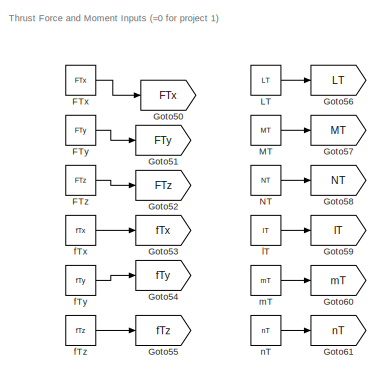
[diagram: root canvas - part 1/6, top left region]
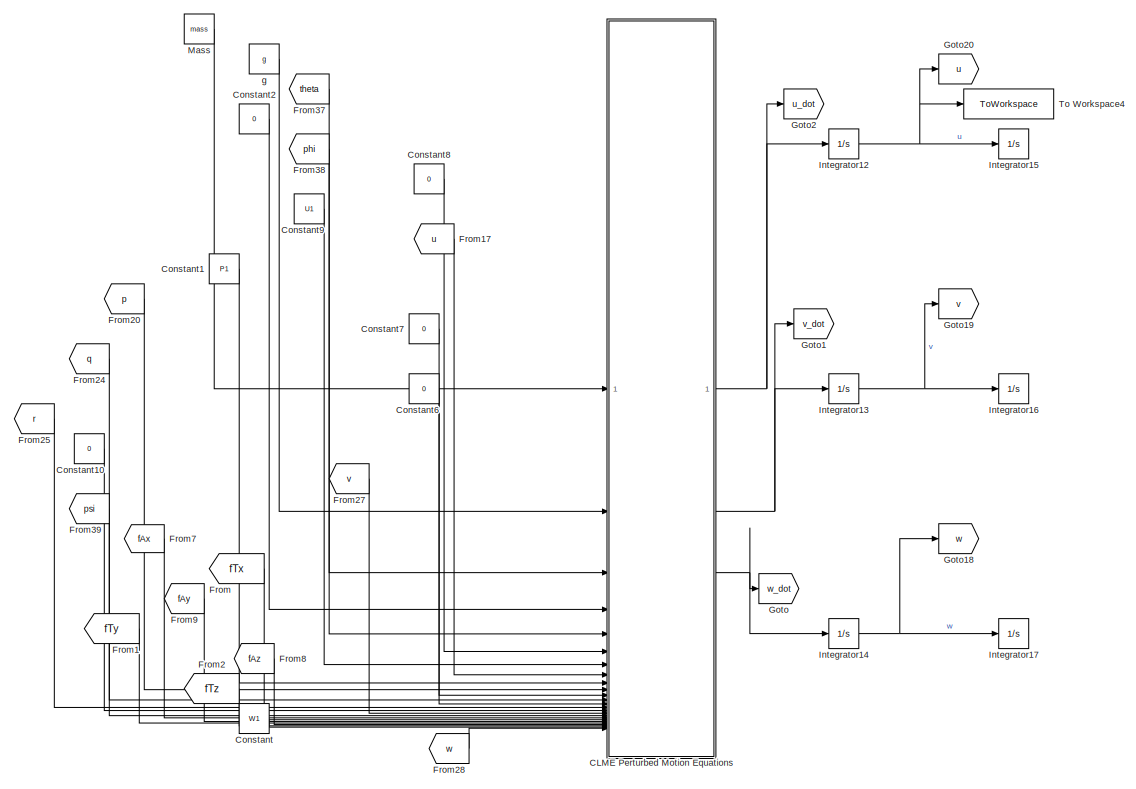
[diagram: root canvas - part 2/6, central region]
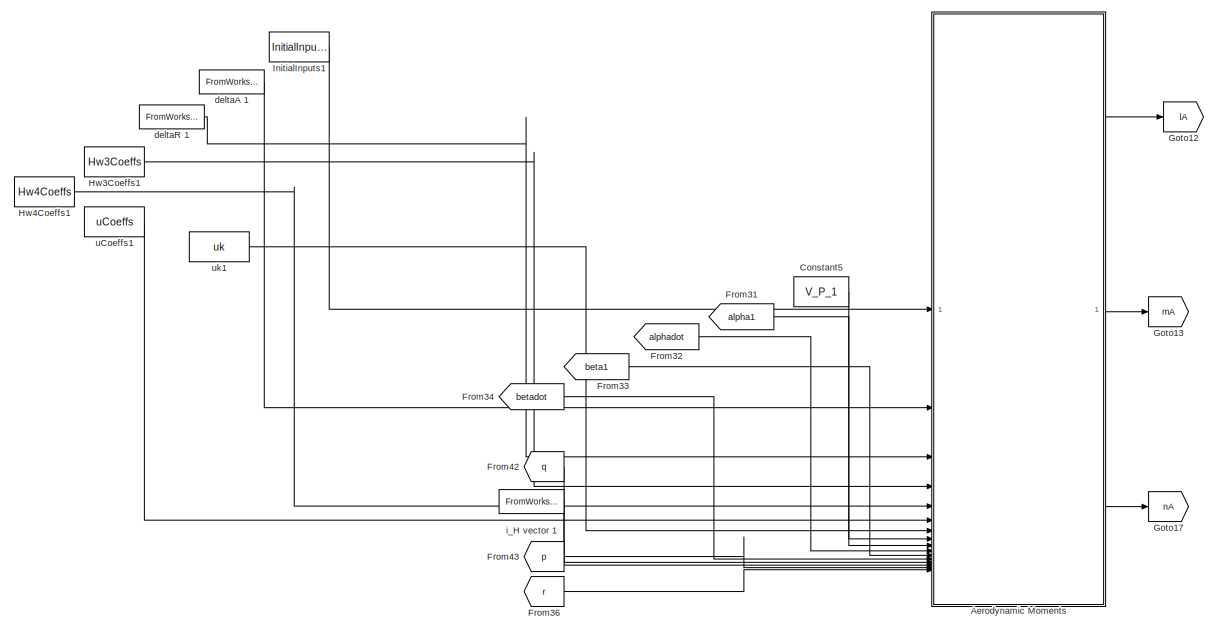
[diagram: root canvas - part 3/6, middle left region]
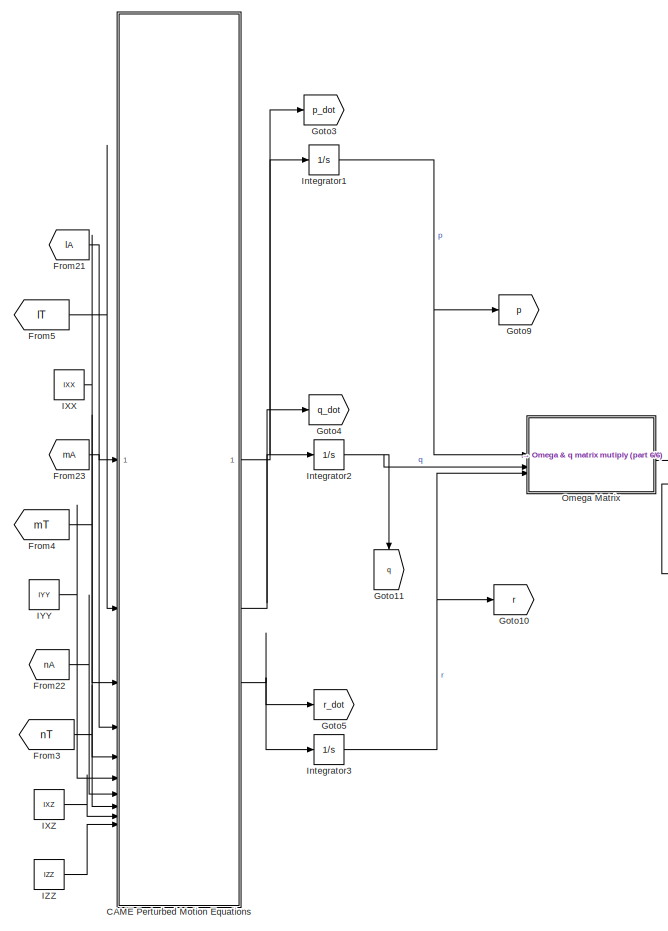
[diagram: root canvas - part 4/6, bottom right region]
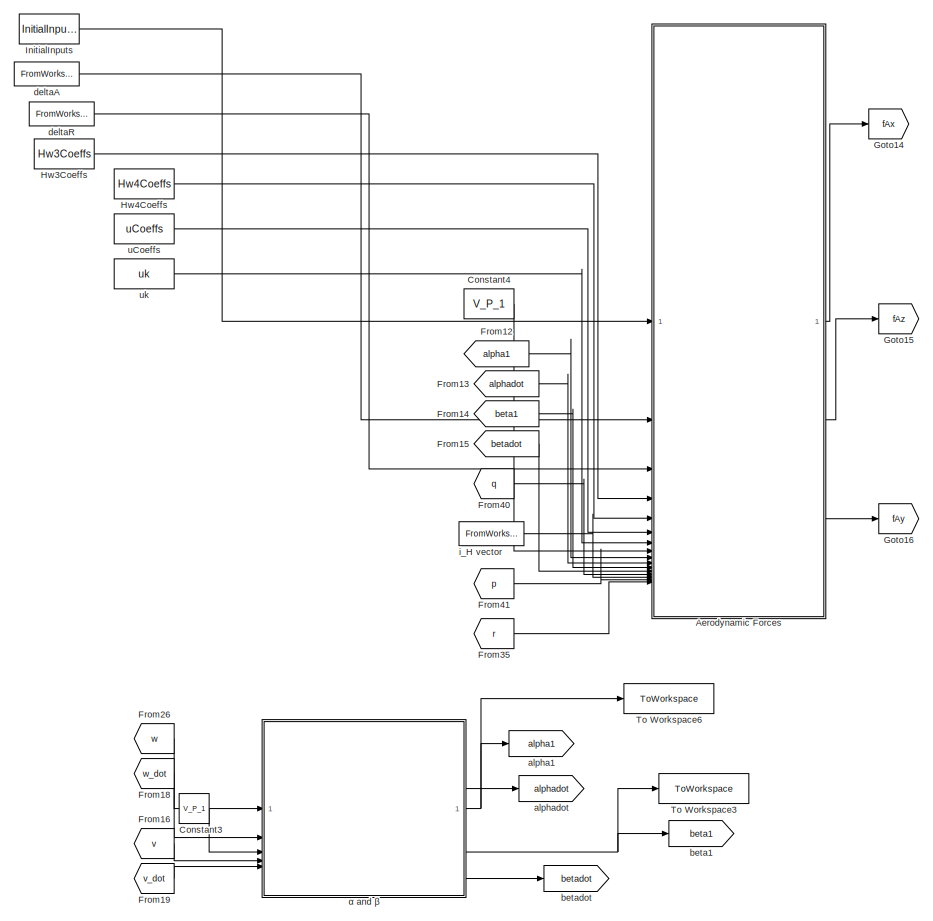
[diagram: root canvas - part 5/6, bottom left region]
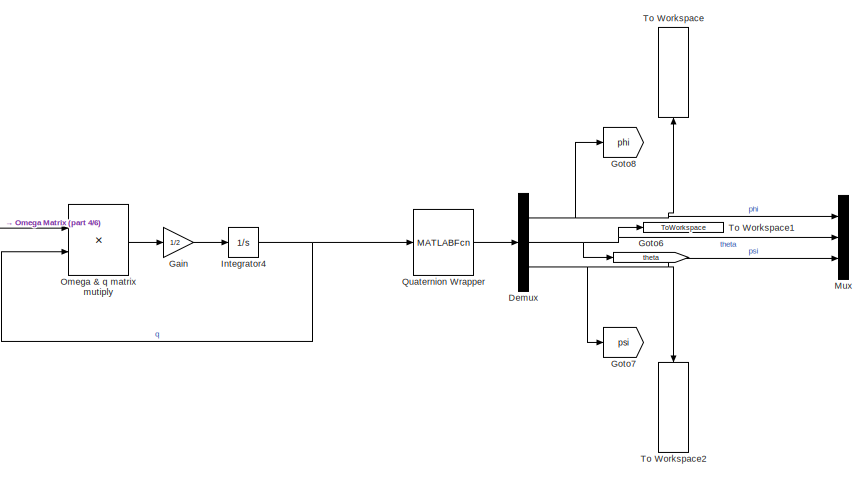
[diagram: root canvas - part 6/6, bottom right region]
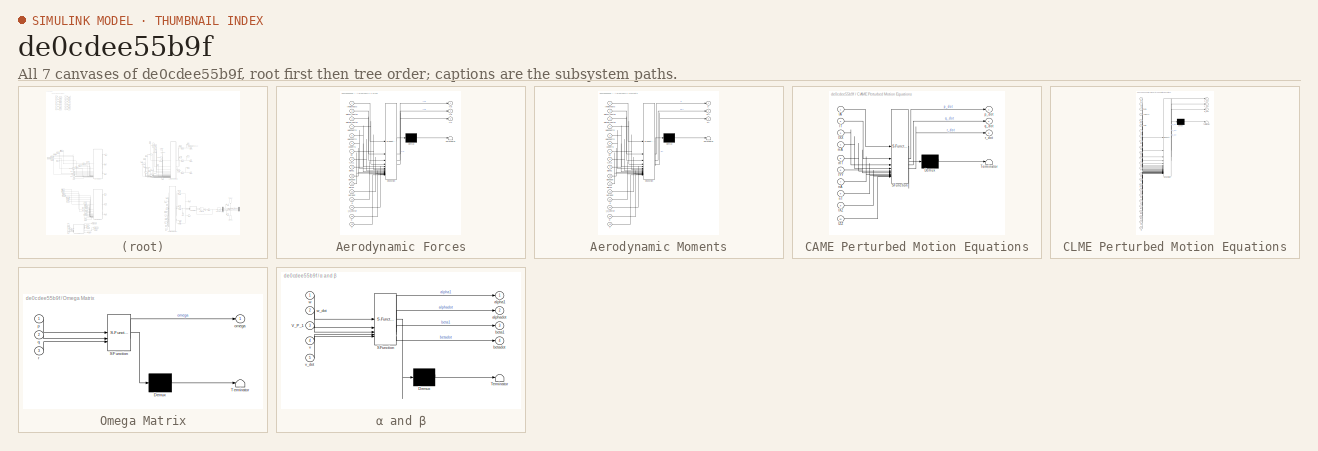
[diagram: thumbnail index - all 7 canvases of the model, root first then tree order]
MODEL slx_de0cdee55b9f
KIND model
CONFIG AbsTol = auto
CONFIG EnableMultiTasking = off
CONFIG FixedStep = Ts
CONFIG MaxStep = auto
CONFIG MinStep = auto
CONFIG RelTol = 1e-3
CONFIG SampleTimeConstraint = Unconstrained
CONFIG SolverName = ode4
CONFIG StartTime = 0.0
CONFIG StopTime = tf
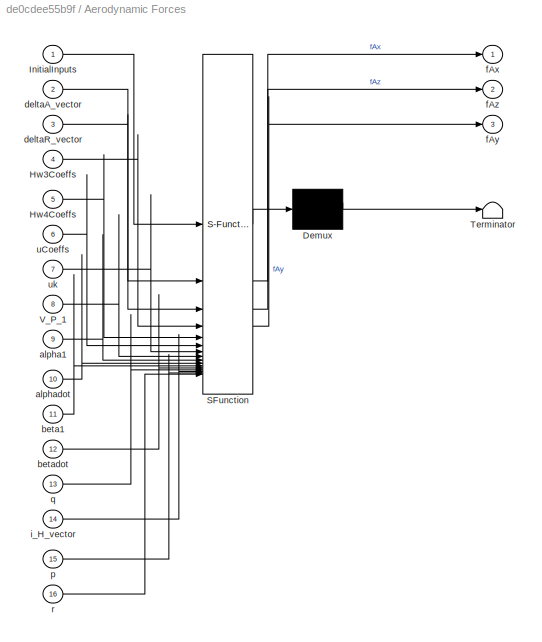
BLOCK [SubSystem] Aerodynamic Forces
  ErrorFcn = Stateflow.Translate.translate
  PermitHierarchicalResolution = ExplicitOnly
  SFBlockType = MATLAB Function
  TreatAsAtomicUnit = on
BLOCK [Demux] Aerodynamic Forces/ Demux 
  Outputs = 1
BLOCK [S-Function] Aerodynamic Forces/ SFunction 
  EnableBusSupport = on
  FunctionName = sf_sfun
  PortCounts = [16 4]
  SFcnIsStateOwnerBlock = off
  SFunctionDeploymentMode = off
  Tag = Stateflow S-Function 13
BLOCK [Terminator] Aerodynamic Forces/ Terminator 
BLOCK [Inport] Aerodynamic Forces/Hw3Coeffs
  Port = 4
BLOCK [Inport] Aerodynamic Forces/Hw4Coeffs
  Port = 5
BLOCK [Inport] Aerodynamic Forces/InitialInputs
BLOCK [Inport] Aerodynamic Forces/V_P_1
  Port = 8
BLOCK [Inport] Aerodynamic Forces/alpha1
  Port = 9
BLOCK [Inport] Aerodynamic Forces/alphadot
  Port = 10
BLOCK [Inport] Aerodynamic Forces/beta1
  Port = 11
BLOCK [Inport] Aerodynamic Forces/betadot
  Port = 12
BLOCK [Inport] Aerodynamic Forces/deltaA_vector
  Port = 2
BLOCK [Inport] Aerodynamic Forces/deltaR_vector
  Port = 3
BLOCK [Outport] Aerodynamic Forces/fAx
BLOCK [Outport] Aerodynamic Forces/fAy
  Port = 3
BLOCK [Outport] Aerodynamic Forces/fAz
  Port = 2
BLOCK [Inport] Aerodynamic Forces/i_H_vector
  Port = 14
BLOCK [Inport] Aerodynamic Forces/p
  Port = 15
BLOCK [Inport] Aerodynamic Forces/q
  Port = 13
BLOCK [Inport] Aerodynamic Forces/r
  Port = 16
BLOCK [Inport] Aerodynamic Forces/uCoeffs
  Port = 6
BLOCK [Inport] Aerodynamic Forces/uk
  Port = 7
BLOCK [SubSystem] Aerodynamic Moments
  ErrorFcn = Stateflow.Translate.translate
  PermitHierarchicalResolution = ExplicitOnly
  SFBlockType = MATLAB Function
  TreatAsAtomicUnit = on
BLOCK [Demux] Aerodynamic Moments/ Demux 
  Outputs = 1
BLOCK [S-Function] Aerodynamic Moments/ SFunction 
  EnableBusSupport = on
  FunctionName = sf_sfun
  PortCounts = [16 4]
  SFcnIsStateOwnerBlock = off
  SFunctionDeploymentMode = off
  Tag = Stateflow S-Function 3
BLOCK [Terminator] Aerodynamic Moments/ Terminator 
BLOCK [Inport] Aerodynamic Moments/Hw3Coeffs
  Port = 4
BLOCK [Inport] Aerodynamic Moments/Hw4Coeffs
  Port = 5
BLOCK [Inport] Aerodynamic Moments/InitialInputs
BLOCK [Inport] Aerodynamic Moments/V_P_1
  Port = 8
BLOCK [Inport] Aerodynamic Moments/alpha1
  Port = 9
BLOCK [Inport] Aerodynamic Moments/alphadot
  Port = 10
BLOCK [Inport] Aerodynamic Moments/beta1
  Port = 11
BLOCK [Inport] Aerodynamic Moments/betadot
  Port = 12
BLOCK [Inport] Aerodynamic Moments/deltaA_vector
  Port = 2
BLOCK [Inport] Aerodynamic Moments/deltaR_vector
  Port = 3
BLOCK [Inport] Aerodynamic Moments/i_H_vector
  Port = 14
BLOCK [Outport] Aerodynamic Moments/lA
BLOCK [Outport] Aerodynamic Moments/mA
  Port = 2
BLOCK [Outport] Aerodynamic Moments/nA
  Port = 3
BLOCK [Inport] Aerodynamic Moments/p
  Port = 15
BLOCK [Inport] Aerodynamic Moments/q
  Port = 13
BLOCK [Inport] Aerodynamic Moments/r
  Port = 16
BLOCK [Inport] Aerodynamic Moments/uCoeffs
  Port = 6
BLOCK [Inport] Aerodynamic Moments/uk
  Port = 7
BLOCK [SubSystem] CAME Perturbed Motion Equations
  ErrorFcn = Stateflow.Translate.translate
  PermitHierarchicalResolution = ExplicitOnly
  SFBlockType = MATLAB Function
  TreatAsAtomicUnit = on
BLOCK [Demux] CAME Perturbed Motion Equations/ Demux 
  Outputs = 1
BLOCK [S-Function] CAME Perturbed Motion Equations/ SFunction 
  EnableBusSupport = on
  FunctionName = sf_sfun
  PortCounts = [10 4]
  SFcnIsStateOwnerBlock = off
  SFunctionDeploymentMode = off
  Tag = Stateflow S-Function 12
BLOCK [Terminator] CAME Perturbed Motion Equations/ Terminator 
BLOCK [Inport] CAME Perturbed Motion Equations/IXX
  Port = 3
BLOCK [Inport] CAME Perturbed Motion Equations/IXZ
  Port = 9
BLOCK [Inport] CAME Perturbed Motion Equations/IYY
  Port = 6
BLOCK [Inport] CAME Perturbed Motion Equations/IZZ
  Port = 10
BLOCK [Inport] CAME Perturbed Motion Equations/lA
BLOCK [Inport] CAME Perturbed Motion Equations/lT
  Port = 2
BLOCK [Inport] CAME Perturbed Motion Equations/mA
  Port = 4
BLOCK [Inport] CAME Perturbed Motion Equations/mT
  Port = 5
BLOCK [Inport] CAME Perturbed Motion Equations/nA
  Port = 7
BLOCK [Inport] CAME Perturbed Motion Equations/nT
  Port = 8
BLOCK [Outport] CAME Perturbed Motion Equations/p_dot
BLOCK [Outport] CAME Perturbed Motion Equations/q_dot
  Port = 2
BLOCK [Outport] CAME Perturbed Motion Equations/r_dot
  Port = 3
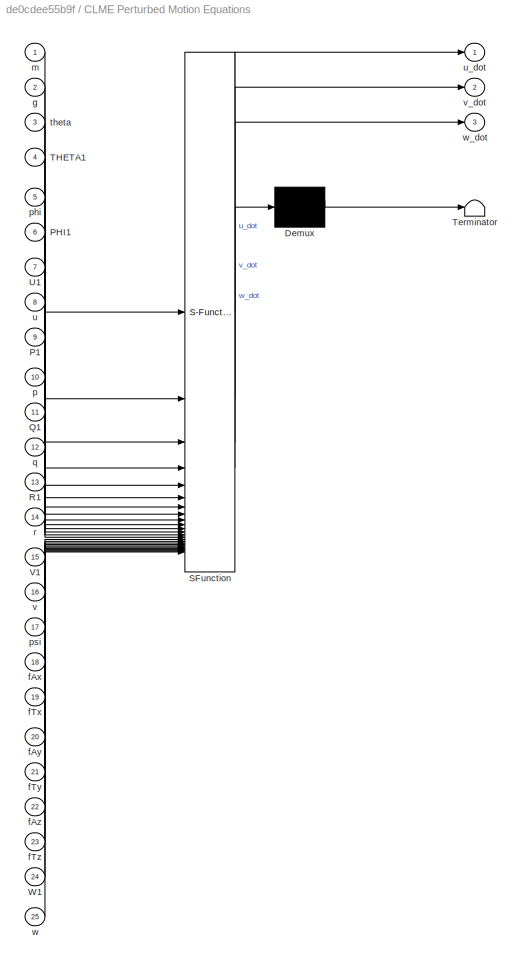
BLOCK [SubSystem] CLME Perturbed Motion Equations
  ErrorFcn = Stateflow.Translate.translate
  PermitHierarchicalResolution = ExplicitOnly
  SFBlockType = MATLAB Function
  TreatAsAtomicUnit = on
BLOCK [Demux] CLME Perturbed Motion Equations/ Demux 
  Outputs = 1
BLOCK [S-Function] CLME Perturbed Motion Equations/ SFunction 
  EnableBusSupport = on
  FunctionName = sf_sfun
  PortCounts = [25 4]
  SFcnIsStateOwnerBlock = off
  SFunctionDeploymentMode = off
  Tag = Stateflow S-Function 5
BLOCK [Terminator] CLME Perturbed Motion Equations/ Terminator 
BLOCK [Inport] CLME Perturbed Motion Equations/P1
  Port = 9
BLOCK [Inport] CLME Perturbed Motion Equations/PHI1
  Port = 6
BLOCK [Inport] CLME Perturbed Motion Equations/Q1
  Port = 11
BLOCK [Inport] CLME Perturbed Motion Equations/R1
  Port = 13
BLOCK [Inport] CLME Perturbed Motion Equations/THETA1
  Port = 4
BLOCK [Inport] CLME Perturbed Motion Equations/U1
  Port = 7
BLOCK [Inport] CLME Perturbed Motion Equations/V1
  Port = 15
BLOCK [Inport] CLME Perturbed Motion Equations/W1
  Port = 24
BLOCK [Inport] CLME Perturbed Motion Equations/fAx
  Port = 18
BLOCK [Inport] CLME Perturbed Motion Equations/fAy
  Port = 20
BLOCK [Inport] CLME Perturbed Motion Equations/fAz
  Port = 22
BLOCK [Inport] CLME Perturbed Motion Equations/fTx
  Port = 19
BLOCK [Inport] CLME Perturbed Motion Equations/fTy
  Port = 21
BLOCK [Inport] CLME Perturbed Motion Equations/fTz
  Port = 23
BLOCK [Inport] CLME Perturbed Motion Equations/g
  Port = 2
BLOCK [Inport] CLME Perturbed Motion Equations/m
BLOCK [Inport] CLME Perturbed Motion Equations/p
  Port = 10
BLOCK [Inport] CLME Perturbed Motion Equations/phi
  Port = 5
BLOCK [Inport] CLME Perturbed Motion Equations/psi
  Port = 17
BLOCK [Inport] CLME Perturbed Motion Equations/q
  Port = 12
BLOCK [Inport] CLME Perturbed Motion Equations/r
  Port = 14
BLOCK [Inport] CLME Perturbed Motion Equations/theta
  Port = 3
BLOCK [Inport] CLME Perturbed Motion Equations/u
  Port = 8
BLOCK [Outport] CLME Perturbed Motion Equations/u_dot
BLOCK [Inport] CLME Perturbed Motion Equations/v
  Port = 16
BLOCK [Outport] CLME Perturbed Motion Equations/v_dot
  Port = 2
BLOCK [Inport] CLME Perturbed Motion Equations/w
  Port = 25
BLOCK [Outport] CLME Perturbed Motion Equations/w_dot
  Port = 3
BLOCK [Constant] Constant
  Value = W1
BLOCK [Constant] Constant1
  Value = P1
BLOCK [Constant] Constant10
  Value = 0
BLOCK [Constant] Constant2
  Value = 0
BLOCK [Constant] Constant3
  Value = V_P_1
BLOCK [Constant] Constant4
  Value = V_P_1
BLOCK [Constant] Constant5
  Value = V_P_1
BLOCK [Constant] Constant6
  Value = 0
BLOCK [Constant] Constant7
  Value = 0
BLOCK [Constant] Constant8
  Value = 0
BLOCK [Constant] Constant9
  Value = U1
BLOCK [Demux] Demux
  Outputs = 3
BLOCK [Constant] FTx
  Value = FTx
BLOCK [Constant] FTy
  Value = FTy
BLOCK [Constant] FTz
  Value = FTz
BLOCK [From] From
  GotoTag = fTx
BLOCK [From] From1
  GotoTag = fTy
BLOCK [From] From12
  GotoTag = alpha1
BLOCK [From] From13
  GotoTag = alphadot
BLOCK [From] From14
  GotoTag = beta1
BLOCK [From] From15
  GotoTag = betadot
BLOCK [From] From16
  GotoTag = v
BLOCK [From] From17
  GotoTag = u
BLOCK [From] From18
  GotoTag = w_dot
BLOCK [From] From19
  GotoTag = v_dot
BLOCK [From] From2
  GotoTag = fTz
BLOCK [From] From20
  GotoTag = p
BLOCK [From] From21
  GotoTag = lA
BLOCK [From] From22
  GotoTag = nA
BLOCK [From] From23
  GotoTag = mA
BLOCK [From] From24
  GotoTag = q
BLOCK [From] From25
  GotoTag = r
BLOCK [From] From26
  GotoTag = w
BLOCK [From] From27
  GotoTag = v
BLOCK [From] From28
  GotoTag = w
BLOCK [From] From3
  GotoTag = nT
BLOCK [From] From31
  GotoTag = alpha1
BLOCK [From] From32
  GotoTag = alphadot
BLOCK [From] From33
  GotoTag = beta1
BLOCK [From] From34
  GotoTag = betadot
BLOCK [From] From35
  GotoTag = r
BLOCK [From] From36
  GotoTag = r
BLOCK [From] From37
  GotoTag = theta
BLOCK [From] From38
  GotoTag = phi
BLOCK [From] From39
  GotoTag = psi
BLOCK [From] From4
  GotoTag = mT
BLOCK [From] From40
  GotoTag = q
BLOCK [From] From41
  GotoTag = p
BLOCK [From] From42
  GotoTag = q
BLOCK [From] From43
  GotoTag = p
BLOCK [From] From5
  GotoTag = lT
BLOCK [From] From7
  GotoTag = fAx
BLOCK [From] From8
  GotoTag = fAz
BLOCK [From] From9
  GotoTag = fAy
BLOCK [Gain] Gain
  Gain = 1/2
BLOCK [Goto] Goto
  GotoTag = w_dot
BLOCK [Goto] Goto1
  GotoTag = v_dot
BLOCK [Goto] Goto10
  GotoTag = r
BLOCK [Goto] Goto11
  GotoTag = q
  NameLocation = left
BLOCK [Goto] Goto12
  GotoTag = lA
BLOCK [Goto] Goto13
  GotoTag = mA
BLOCK [Goto] Goto14
  GotoTag = fAx
BLOCK [Goto] Goto15
  GotoTag = fAz
BLOCK [Goto] Goto16
  GotoTag = fAy
BLOCK [Goto] Goto17
  GotoTag = nA
BLOCK [Goto] Goto18
  GotoTag = w
BLOCK [Goto] Goto19
  GotoTag = v
BLOCK [Goto] Goto2
  GotoTag = u_dot
BLOCK [Goto] Goto20
  GotoTag = u
BLOCK [Goto] Goto3
  GotoTag = p_dot
BLOCK [Goto] Goto4
  GotoTag = q_dot
BLOCK [Goto] Goto5
  GotoTag = r_dot
BLOCK [Goto] Goto50
  GotoTag = FTx
BLOCK [Goto] Goto51
  GotoTag = FTy
BLOCK [Goto] Goto52
  GotoTag = FTz
BLOCK [Goto] Goto53
  GotoTag = fTx
BLOCK [Goto] Goto54
  GotoTag = fTy
BLOCK [Goto] Goto55
  GotoTag = fTz
BLOCK [Goto] Goto56
  GotoTag = LT
BLOCK [Goto] Goto57
  GotoTag = MT
BLOCK [Goto] Goto58
  GotoTag = NT
BLOCK [Goto] Goto59
  GotoTag = lT
BLOCK [Goto] Goto6
  GotoTag = theta
BLOCK [Goto] Goto60
  GotoTag = mT
BLOCK [Goto] Goto61
  GotoTag = nT
BLOCK [Goto] Goto7
  GotoTag = psi
BLOCK [Goto] Goto8
  GotoTag = phi
BLOCK [Goto] Goto9
  GotoTag = p
BLOCK [Constant] Hw3Coeffs
  Value = Hw3Coeffs
BLOCK [Constant] Hw3Coeffs1
  Value = Hw3Coeffs
BLOCK [Constant] Hw4Coeffs
  Value = Hw4Coeffs
BLOCK [Constant] Hw4Coeffs1
  Value = Hw4Coeffs
BLOCK [Constant] IXX 
  Value = IXX
BLOCK [Constant] IXZ
  Value = IXZ
BLOCK [Constant] IYY
  Value = IYY
BLOCK [Constant] IZZ
  Value = IZZ
BLOCK [Constant] InitialInputs
  Value = InitialInputs
BLOCK [Constant] InitialInputs1
  Value = InitialInputs
BLOCK [Integrator] Integrator1
BLOCK [Integrator] Integrator12
BLOCK [Integrator] Integrator13
BLOCK [Integrator] Integrator14
BLOCK [Integrator] Integrator15
BLOCK [Integrator] Integrator16
BLOCK [Integrator] Integrator17
BLOCK [Integrator] Integrator2
BLOCK [Integrator] Integrator3
BLOCK [Integrator] Integrator4
  InitialCondition = q0
BLOCK [Constant] LT
  Value = LT
BLOCK [Constant] MT
  Value = MT
BLOCK [Constant] Mass
  Value = mass
BLOCK [Mux] Mux
  DisplayOption = bar
  Inputs = 3
BLOCK [Constant] NT
  Value = NT
BLOCK [Product] Omega & q matrix mutiply
  Multiplication = Matrix(*)
BLOCK [SubSystem] Omega Matrix
  ErrorFcn = Stateflow.Translate.translate
  PermitHierarchicalResolution = ExplicitOnly
  SFBlockType = MATLAB Function
  TreatAsAtomicUnit = on
BLOCK [Demux] Omega Matrix/ Demux 
  Outputs = 1
BLOCK [S-Function] Omega Matrix/ SFunction 
  EnableBusSupport = on
  FunctionName = sf_sfun
  PortCounts = [3 2]
  SFcnIsStateOwnerBlock = off
  SFunctionDeploymentMode = off
  Tag = Stateflow S-Function 1
BLOCK [Terminator] Omega Matrix/ Terminator 
BLOCK [Outport] Omega Matrix/omega
BLOCK [Inport] Omega Matrix/p
BLOCK [Inport] Omega Matrix/q
  Port = 2
BLOCK [Inport] Omega Matrix/r
  Port = 3
BLOCK [MATLABFcn] Quaternion Wrapper
  MATLABFcn = WrapperQuat2Angle
BLOCK [ToWorkspace] To Workspace
  FixptAsFi = on
  MaxDataPoints = inf
  NameLocation = right
  SampleTime = -1
  Save2DSignal = 2-D array (concatenate along first dimension)
  VariableName = phi
BLOCK [ToWorkspace] To Workspace1
  FixptAsFi = on
  MaxDataPoints = inf
  SampleTime = -1
  Save2DSignal = 2-D array (concatenate along first dimension)
  VariableName = theta
BLOCK [ToWorkspace] To Workspace2
  FixptAsFi = on
  MaxDataPoints = inf
  NameLocation = left
  SampleTime = -1
  Save2DSignal = 2-D array (concatenate along first dimension)
  VariableName = psi
BLOCK [ToWorkspace] To Workspace3
  MaxDataPoints = inf
  SampleTime = -1
  Save2DSignal = 2-D array (concatenate along first dimension)
  VariableName = beta1
BLOCK [ToWorkspace] To Workspace4
  FixptAsFi = on
  MaxDataPoints = inf
  SampleTime = -1
  SaveFormat = Timeseries
  VariableName = u
BLOCK [ToWorkspace] To Workspace6
  FixptAsFi = on
  MaxDataPoints = inf
  SampleTime = -1
  Save2DSignal = 2-D array (concatenate along first dimension)
  VariableName = alpha1
BLOCK [Goto] alpha1
  GotoTag = alpha1
BLOCK [Goto] alphadot
  GotoTag = alphadot
BLOCK [Goto] beta1
  GotoTag = beta1
BLOCK [Goto] betadot
  GotoTag = betadot
BLOCK [FromWorkspace] deltaA 
  OutDataTypeStr = double
  VariableName = deltaA_vector
BLOCK [FromWorkspace] deltaA 1
  OutDataTypeStr = double
  VariableName = deltaA_vector
BLOCK [FromWorkspace] deltaR 
  OutDataTypeStr = double
  VariableName = deltaR_vector
BLOCK [FromWorkspace] deltaR 1
  OutDataTypeStr = double
  VariableName = deltaR_vector
BLOCK [Constant] fTx
  Value = fTx
BLOCK [Constant] fTy
  Value = fTy
BLOCK [Constant] fTz
  Value = fTz
BLOCK [Constant] g
  NameLocation = left
  Value = g
BLOCK [FromWorkspace] i_H vector 
  VariableName = i_H_vector
BLOCK [FromWorkspace] i_H vector 1
  VariableName = i_H_vector
BLOCK [Constant] lT
  Value = lT
BLOCK [Constant] mT
  Value = mT
BLOCK [Constant] nT
  Value = nT
BLOCK [Constant] uCoeffs
  Value = uCoeffs
BLOCK [Constant] uCoeffs1
  Value = uCoeffs
BLOCK [Constant] uk
  Value = uk
BLOCK [Constant] uk1
  Value = uk
BLOCK [SubSystem] α and β
  ErrorFcn = Stateflow.Translate.translate
  PermitHierarchicalResolution = ExplicitOnly
  SFBlockType = MATLAB Function
  TreatAsAtomicUnit = on
BLOCK [Demux] α and β/ Demux 
  Outputs = 1
BLOCK [S-Function] α and β/ SFunction 
  EnableBusSupport = on
  FunctionName = sf_sfun
  PortCounts = [5 5]
  SFcnIsStateOwnerBlock = off
  SFunctionDeploymentMode = off
  Tag = Stateflow S-Function 4
BLOCK [Terminator] α and β/ Terminator 
BLOCK [Inport] α and β/V_P_1
  Port = 3
BLOCK [Outport] α and β/alpha1
BLOCK [Outport] α and β/alphadot
  Port = 2
BLOCK [Outport] α and β/beta1
  Port = 3
BLOCK [Outport] α and β/betadot
  Port = 4
BLOCK [Inport] α and β/v
  Port = 4
BLOCK [Inport] α and β/v_dot
  Port = 5
BLOCK [Inport] α and β/w
BLOCK [Inport] α and β/w_dot
  Port = 2
ANNOTATION (root): Thrust Force and Moment Inputs (=0 for project 1)
LINE Aerodynamic Forces:1 -> Goto14:1
LINE Aerodynamic Forces:2 -> Goto15:1
LINE Aerodynamic Forces:3 -> Goto16:1
LINE Aerodynamic Moments:1 -> Goto12:1
LINE Aerodynamic Moments:2 -> Goto13:1
LINE Aerodynamic Moments:3 -> Goto17:1
NET CAME Perturbed Motion Equations:1 -> Goto3:1, Integrator1:1
NET CAME Perturbed Motion Equations:2 -> Goto4:1, Integrator2:1
NET CAME Perturbed Motion Equations:3 -> Goto5:1, Integrator3:1
NET CLME Perturbed Motion Equations:1 -> Goto2:1, Integrator12:1
NET CLME Perturbed Motion Equations:2 -> Goto1:1, Integrator13:1
NET CLME Perturbed Motion Equations:3 -> Goto:1, Integrator14:1
LINE Constant10:1 -> CLME Perturbed Motion Equations:15
LINE Constant1:1 -> CLME Perturbed Motion Equations:9
LINE Constant2:1 -> CLME Perturbed Motion Equations:4
LINE Constant3:1 -> α and β:3
LINE Constant4:1 -> Aerodynamic Forces:8
LINE Constant5:1 -> Aerodynamic Moments:8
LINE Constant6:1 -> CLME Perturbed Motion Equations:13
LINE Constant7:1 -> CLME Perturbed Motion Equations:11
LINE Constant8:1 -> CLME Perturbed Motion Equations:6
LINE Constant9:1 -> CLME Perturbed Motion Equations:7
LINE Constant:1 -> CLME Perturbed Motion Equations:24
NET Demux:1 -> Goto8:1, Mux:1, To Workspace:1
NET Demux:2 -> Goto6:1, Mux:2, To Workspace1:1
NET Demux:3 -> Goto7:1, Mux:3, To Workspace2:1
LINE FTx:1 -> Goto50:1
LINE FTy:1 -> Goto51:1
LINE FTz:1 -> Goto52:1
LINE From12:1 -> Aerodynamic Forces:9
LINE From13:1 -> Aerodynamic Forces:10
LINE From14:1 -> Aerodynamic Forces:11
LINE From15:1 -> Aerodynamic Forces:12
LINE From16:1 -> α and β:4
LINE From17:1 -> CLME Perturbed Motion Equations:8
LINE From18:1 -> α and β:2
LINE From19:1 -> α and β:5
LINE From1:1 -> CLME Perturbed Motion Equations:21
LINE From20:1 -> CLME Perturbed Motion Equations:10
LINE From21:1 -> CAME Perturbed Motion Equations:1
LINE From22:1 -> CAME Perturbed Motion Equations:7
LINE From23:1 -> CAME Perturbed Motion Equations:4
LINE From24:1 -> CLME Perturbed Motion Equations:12
LINE From25:1 -> CLME Perturbed Motion Equations:14
LINE From26:1 -> α and β:1
LINE From27:1 -> CLME Perturbed Motion Equations:16
LINE From28:1 -> CLME Perturbed Motion Equations:25
LINE From2:1 -> CLME Perturbed Motion Equations:23
LINE From31:1 -> Aerodynamic Moments:9
LINE From32:1 -> Aerodynamic Moments:10
LINE From33:1 -> Aerodynamic Moments:11
LINE From34:1 -> Aerodynamic Moments:12
LINE From35:1 -> Aerodynamic Forces:16
LINE From36:1 -> Aerodynamic Moments:16
LINE From37:1 -> CLME Perturbed Motion Equations:3
LINE From38:1 -> CLME Perturbed Motion Equations:5
LINE From39:1 -> CLME Perturbed Motion Equations:17
LINE From3:1 -> CAME Perturbed Motion Equations:8
LINE From40:1 -> Aerodynamic Forces:13
LINE From41:1 -> Aerodynamic Forces:15
LINE From42:1 -> Aerodynamic Moments:13
LINE From43:1 -> Aerodynamic Moments:15
LINE From4:1 -> CAME Perturbed Motion Equations:5
LINE From5:1 -> CAME Perturbed Motion Equations:2
LINE From7:1 -> CLME Perturbed Motion Equations:18
LINE From8:1 -> CLME Perturbed Motion Equations:22
LINE From9:1 -> CLME Perturbed Motion Equations:20
LINE From:1 -> CLME Perturbed Motion Equations:19
LINE Gain:1 -> Integrator4:1
LINE Hw3Coeffs1:1 -> Aerodynamic Moments:4
LINE Hw3Coeffs:1 -> Aerodynamic Forces:4
LINE Hw4Coeffs1:1 -> Aerodynamic Moments:5
LINE Hw4Coeffs:1 -> Aerodynamic Forces:5
LINE IXX :1 -> CAME Perturbed Motion Equations:3
LINE IXZ:1 -> CAME Perturbed Motion Equations:9
LINE IYY:1 -> CAME Perturbed Motion Equations:6
LINE IZZ:1 -> CAME Perturbed Motion Equations:10
LINE InitialInputs1:1 -> Aerodynamic Moments:1
LINE InitialInputs:1 -> Aerodynamic Forces:1
NET Integrator12:1 -> Goto20:1, Integrator15:1, To Workspace4:1
NET Integrator13:1 -> Goto19:1, Integrator16:1
NET Integrator14:1 -> Goto18:1, Integrator17:1
NET Integrator1:1 -> Goto9:1, Omega Matrix:1
NET Integrator2:1 -> Goto11:1, Omega Matrix:2
NET Integrator3:1 -> Goto10:1, Omega Matrix:3
NET Integrator4:1 -> Omega & q matrix mutiply:2, Quaternion Wrapper:1
LINE LT:1 -> Goto56:1
LINE MT:1 -> Goto57:1
LINE Mass:1 -> CLME Perturbed Motion Equations:1
LINE NT:1 -> Goto58:1
LINE Omega & q matrix mutiply:1 -> Gain:1
LINE Omega Matrix:1 -> Omega & q matrix mutiply:1
LINE Quaternion Wrapper:1 -> Demux:1
LINE deltaA 1:1 -> Aerodynamic Moments:2
LINE deltaA :1 -> Aerodynamic Forces:2
LINE deltaR 1:1 -> Aerodynamic Moments:3
LINE deltaR :1 -> Aerodynamic Forces:3
LINE fTx:1 -> Goto53:1
LINE fTy:1 -> Goto54:1
LINE fTz:1 -> Goto55:1
LINE g:1 -> CLME Perturbed Motion Equations:2
LINE i_H vector 1:1 -> Aerodynamic Moments:14
LINE i_H vector :1 -> Aerodynamic Forces:14
LINE lT:1 -> Goto59:1
LINE mT:1 -> Goto60:1
LINE nT:1 -> Goto61:1
LINE uCoeffs1:1 -> Aerodynamic Moments:6
LINE uCoeffs:1 -> Aerodynamic Forces:6
LINE uk1:1 -> Aerodynamic Moments:7
LINE uk:1 -> Aerodynamic Forces:7
NET α and β:1 -> To Workspace6:1, alpha1:1
LINE α and β:2 -> alphadot:1
NET α and β:3 -> To Workspace3:1, beta1:1
LINE α and β:4 -> betadot:1
note: NET lines group one-source signal fan-out (src -> all destinations, sorted); 1:1 wires keep LINE
CHART CLME Perturbed Motion Equations states=1 transitions=1
  STATE_LABEL 'eML_blk_kernel()'
  STATE_LABEL 'SCRIPT:\nfunction [u_dot, v_dot, w_dot] = fcn(m, g, theta, THETA1, phi, PHI1, U1, u, P1, p, Q1, q, R1, r, V1, v, psi, fAx, fTx, fAy, fTy, fAz, fTz, W1, w)\n\n\n\n%u_dot = (1/m) * ((-m*g*theta*cosd(THETA1)) + (fAx + fTx) - (Q1*w) - (q*W1) + (R1*v) + (r*V1));\n%v_dot = (1/m) * (((-m*g*theta*sind(PHI1)*sind(THETA1))+(m*g*phi*cosd(PHI1)*cosd(THETA1))) + (fAy + fTy) - (U1*r) - (u*R1) + (P1*w) + (p*W1));\n%w_d...<+349ch>'
CHART CAME Perturbed Motion Equations states=1 transitions=1
  STATE_LABEL 'eML_blk_kernel()'
  STATE_LABEL 'SCRIPT:\nfunction [p_dot, q_dot, r_dot] = fcn(lA, lT, IXX, mA, mT, IYY, nA, nT, IXZ, IZZ)\n%CAME - Still Needs to be fixed\n%P_dot = ((la+lt)+(R_dot.*IXZ)+(P.*Q.*IXZ)-((R*Q).*(IZZ-IYY)))./(IXX);\n%Q_dot = ((ma+mt)-(R_dot.*IXZ)+(P.*Q.*IXZ)-(R*Q).*(IZZ-IYY))./(IYY);\n%R_dot = ((nA+nT) + (P_dot*IXZ) - (((P1*q)+(p*Q1))*(IYY-IXX)) - (((Q1*r)+(R1*q))*IXZ))/(IZZ);\n\n% p_dot = ((r_dot*IXZ) + (lA+lT))/IXX;\n% q_d...<+360ch>'
CHART Aerodynamic Forces states=1 transitions=1
  STATE_LABEL 'eML_blk_kernel()'
  STATE_LABEL 'SCRIPT:\nfunction [ fAx, fAz,  fAy]  = fcn(InitialInputs, deltaA_vector, deltaR_vector, Hw3Coeffs, Hw4Coeffs, uCoeffs, uk, V_P_1, alpha1, alphadot, beta1, betadot, q, i_H_vector, p, r)\nqbar1 = InitialInputs(1); S_ft2 = InitialInputs(2); c_D_1 = InitialInputs(3); c_L_1 = InitialInputs(4); cbar_ft = InitialInputs(5); c_m_1 = InitialInputs(6); uv = InitialInputs(7); b_ft = InitialInputs(8);\n% deltaA_v...<+2540ch>'
CHART Omega Matrix states=1 transitions=1
  STATE_LABEL 'eML_blk_kernel()'
  STATE_LABEL 'SCRIPT:\nfunction omega = fcn(p,q,r)\n\n\nwx = p;\nwy = q;\nwz = r;\nomega = [0 -wx -wy -wz;\n         wx 0 wz -wy;\n         wy -wz 0 wx;\n         wz wy -wx 0];\n'
CHART Aerodynamic Moments states=1 transitions=1
  STATE_LABEL 'eML_blk_kernel()'
  STATE_LABEL 'SCRIPT:\nfunction [lA,  mA, nA]  = fcn(InitialInputs, deltaA_vector, deltaR_vector, Hw3Coeffs, Hw4Coeffs, uCoeffs, uk, V_P_1, alpha1, alphadot, beta1, betadot, q, i_H_vector, p, r)\nqbar1 = InitialInputs(1); S_ft2 = InitialInputs(2); c_D_1 = InitialInputs(3); c_L_1 = InitialInputs(4); cbar_ft = InitialInputs(5); c_m_1 = InitialInputs(6); uv = InitialInputs(7); b_ft = InitialInputs(8);\n% deltaA_vecto...<+2546ch>'
CHART α and β states=1 transitions=1
  STATE_LABEL 'eML_blk_kernel()'
  STATE_LABEL 'SCRIPT:\nfunction [alpha1, alphadot, beta1, betadot] = fcn(w, w_dot, V_P_1, v, v_dot)\nalpha1 = 2.6;\n\nalpha1 = w/V_P_1;\n\nalphadot = w_dot/V_P_1;\n\nbeta1 = v/V_P_1;\n\nbetadot = v_dot/V_P_1;\n\n'
CHART  states=0 transitions=0
CHART  states=0 transitions=0
CHART  states=0 transitions=0
CHART  states=0 transitions=0
CHART  states=0 transitions=0
CHART  states=0 transitions=0
